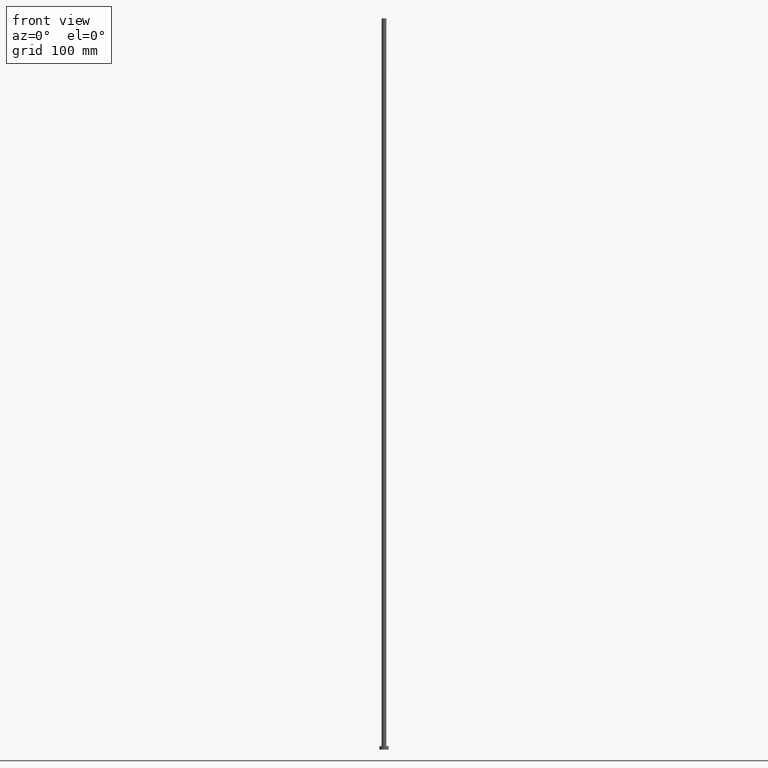
[diagram: clean part render]
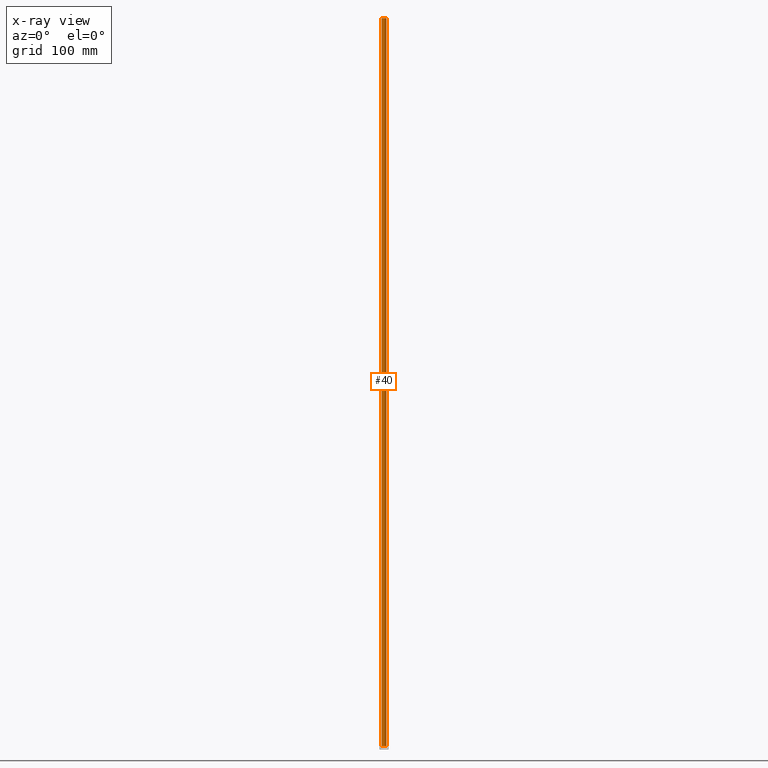
[diagram: x-ray — body ghosted, one internal face saturated and labeled with its STEP entity id]
A machine part, front view, then the same camera in x-ray: the body is ghosted and one INTERNAL B-rep face — a face not visible from any outside direction — is saturated and labeled: STEP entity #40.
In plain terms, the highlighted cylindrical surface (edge-blend (fillet) strip) has radius 2 mm, axis along (-0, -0, -1).
Its self-contained STEP definition (entity closure, byte-faithful):
#3 = EDGE_CURVE ( 'NONE', #213, #187, #106, .T. ) ;
#12 = ORIENTED_EDGE ( 'NONE', *, *, #161, .F. ) ;
#14 = DIRECTION ( 'NONE',  ( -0.000000000000000000, -0.000000000000000000, -1.000000000000000000 ) ) ;
#24 = CIRCLE ( 'NONE', #167, 2.000000000000000000 ) ;
#36 = DIRECTION ( 'NONE',  ( 1.000000000000000000, 0.000000000000000000, 0.000000000000000000 ) ) ;
#40 = ADVANCED_FACE ( 'NONE', ( #195 ), #180, .T. ) ;
#46 = CARTESIAN_POINT ( 'NONE',  ( 2.000000000000000000, 2.449293598294706414E-16, 3.000000000000000000 ) ) ;
#49 = CARTESIAN_POINT ( 'NONE',  ( 0.000000000000000000, 0.000000000000000000, 3.000000000000000000 ) ) ;
#57 = VECTOR ( 'NONE', #217, 1000.000000000000000 ) ;
#59 = CARTESIAN_POINT ( 'NONE',  ( -2.000000000000000000, 0.000000000000000000, 3.000000000000000000 ) ) ;
#62 = DIRECTION ( 'NONE',  ( 0.000000000000000000, 0.000000000000000000, 1.000000000000000000 ) ) ;
#78 = CARTESIAN_POINT ( 'NONE',  ( -2.000000000000000000, 0.000000000000000000, 630.0000000000000000 ) ) ;
#86 = AXIS2_PLACEMENT_3D ( 'NONE', #49, #206, #36 ) ;
#93 = DIRECTION ( 'NONE',  ( -1.000000000000000000, 0.000000000000000000, 0.000000000000000000 ) ) ;
#106 = CIRCLE ( 'NONE', #86, 2.000000000000000000 ) ;
#108 = EDGE_CURVE ( 'NONE', #168, #187, #121, .T. ) ;
#109 = CARTESIAN_POINT ( 'NONE',  ( 2.000000000000000000, 2.449293598294706414E-16, 630.0000000000000000 ) ) ;
#121 = LINE ( 'NONE', #78, #201 ) ;
#124 = ORIENTED_EDGE ( 'NONE', *, *, #169, .T. ) ;
#125 = CARTESIAN_POINT ( 'NONE',  ( 2.000000000000000000, 2.449293598294706414E-16, 630.0000000000000000 ) ) ;
#144 = CARTESIAN_POINT ( 'NONE',  ( -2.000000000000000000, 0.000000000000000000, 630.0000000000000000 ) ) ;
#148 = ORIENTED_EDGE ( 'NONE', *, *, #108, .F. ) ;
#153 = DIRECTION ( 'NONE',  ( 1.000000000000000000, 0.000000000000000000, 0.000000000000000000 ) ) ;
#161 = EDGE_CURVE ( 'NONE', #237, #168, #24, .T. ) ;
#167 = AXIS2_PLACEMENT_3D ( 'NONE', #174, #62, #153 ) ;
#168 = VERTEX_POINT ( 'NONE', #144 ) ;
#169 = EDGE_CURVE ( 'NONE', #237, #213, #229, .T. ) ;
#174 = CARTESIAN_POINT ( 'NONE',  ( 0.000000000000000000, 0.000000000000000000, 630.0000000000000000 ) ) ;
#179 = DIRECTION ( 'NONE',  ( -0.000000000000000000, -0.000000000000000000, -1.000000000000000000 ) ) ;
#180 = CYLINDRICAL_SURFACE ( 'NONE', #252, 2.000000000000000000 ) ;
#187 = VERTEX_POINT ( 'NONE', #59 ) ;
#195 = FACE_OUTER_BOUND ( 'NONE', #211, .T. ) ;
#201 = VECTOR ( 'NONE', #179, 1000.000000000000000 ) ;
#206 = DIRECTION ( 'NONE',  ( 0.000000000000000000, 0.000000000000000000, 1.000000000000000000 ) ) ;
#211 = EDGE_LOOP ( 'NONE', ( #12, #124, #246, #148 ) ) ;
#213 = VERTEX_POINT ( 'NONE', #46 ) ;
#217 = DIRECTION ( 'NONE',  ( -0.000000000000000000, -0.000000000000000000, -1.000000000000000000 ) ) ;
#229 = LINE ( 'NONE', #125, #57 ) ;
#235 = CARTESIAN_POINT ( 'NONE',  ( 0.000000000000000000, 0.000000000000000000, 630.0000000000000000 ) ) ;
#237 = VERTEX_POINT ( 'NONE', #109 ) ;
#246 = ORIENTED_EDGE ( 'NONE', *, *, #3, .T. ) ;
#252 = AXIS2_PLACEMENT_3D ( 'NONE', #235, #14, #93 ) ;